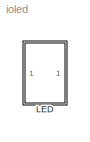
MODEL ioled
KIND model
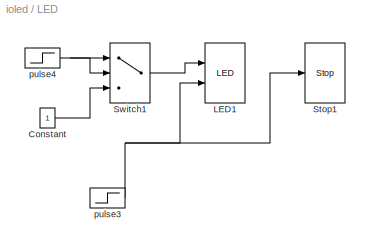
BLOCK [SubSystem] LED
  MinAlgLoopOccurrences = off
  Ports = []
  PropExecContextAcrossSSBoundary = on
  RTWSystemCode = Auto
  TreatAsAtomicUnit = off
BLOCK [Constant] LED/Constant
BLOCK [Reference] LED/LED1  REF=xpclib/LED/MathWorks/LED 
  Ports = [2]
  SourceBlock = xpclib/LED/MathWorks/LED
  SourceType = targetboxleds
  initValue = [0]
  leds = [1 2]
  reset = [0]
  sampleTime = 0.001
BLOCK [Stop] LED/Stop1
BLOCK [Switch] LED/Switch1
  Criteria = u2 ~= 0
  InputSameDT = off
BLOCK [Step] LED/pulse3
  SampleTime = 0
  Time = 4
BLOCK [Step] LED/pulse4
  After = 0
  Before = 1
  SampleTime = 0
  Time = 4
LINE LED/Constant:1 -> LED/Switch1:3
LINE LED/Switch1:1 -> LED/LED1:1
NET LED/pulse3:1 -> LED/LED1:2, LED/Stop1:1
NET LED/pulse4:1 -> LED/Switch1:1, LED/Switch1:2
note: NET lines group one-source signal fan-out (src -> all destinations, sorted); 1:1 wires keep LINE
